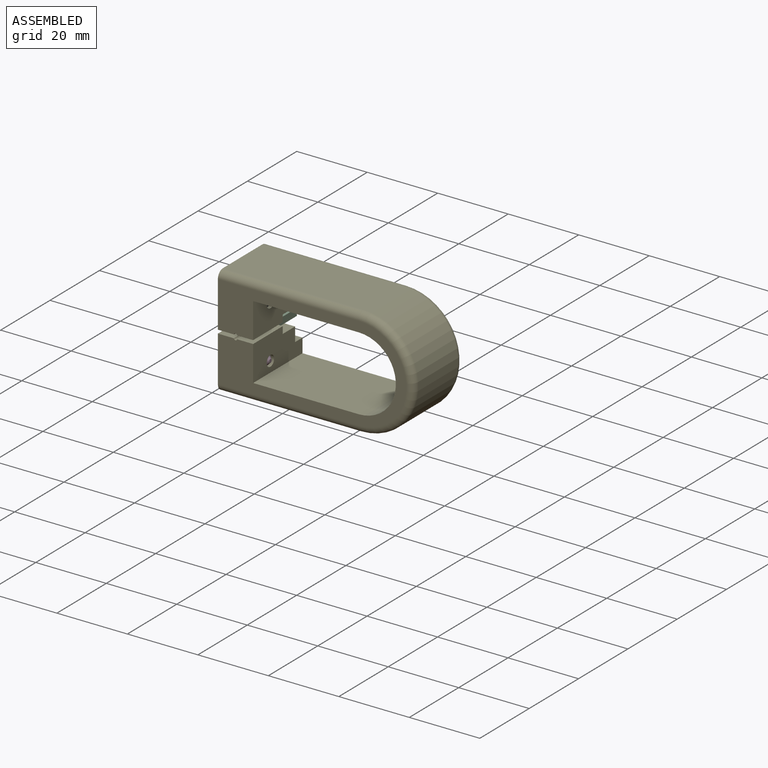
[diagram: assembled view]
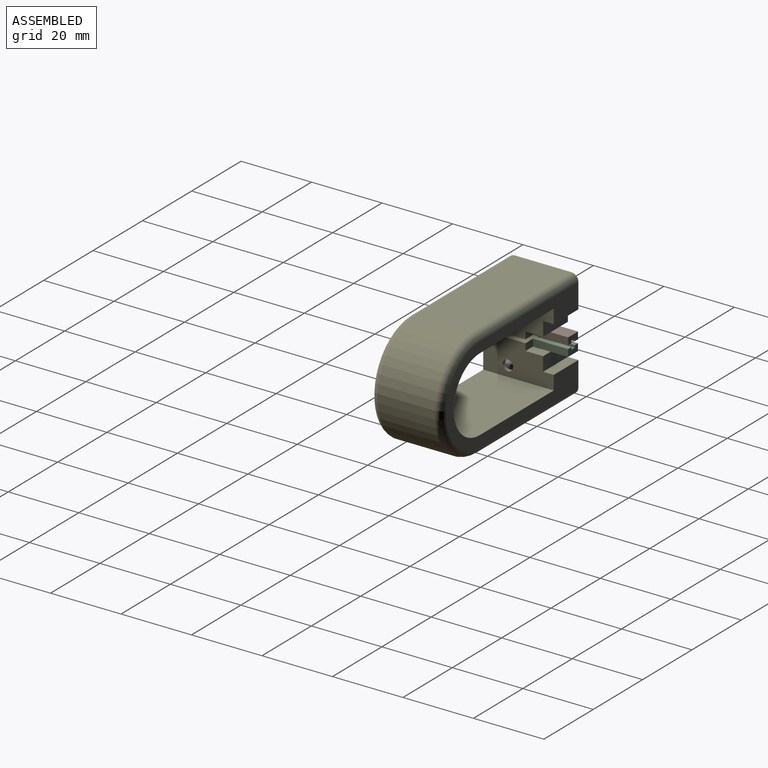
[diagram: assembled view, second angle]
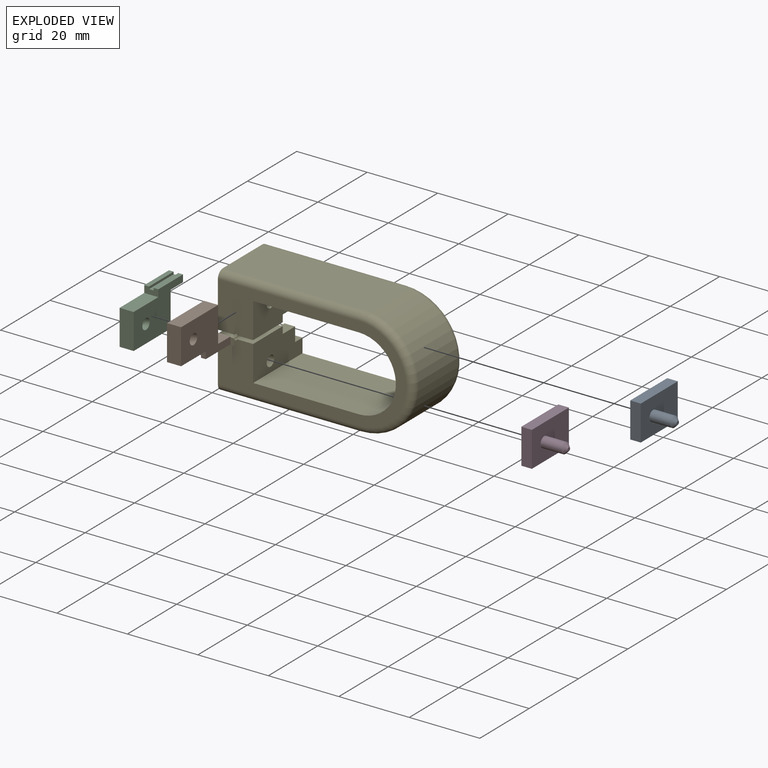
[diagram: exploded view]
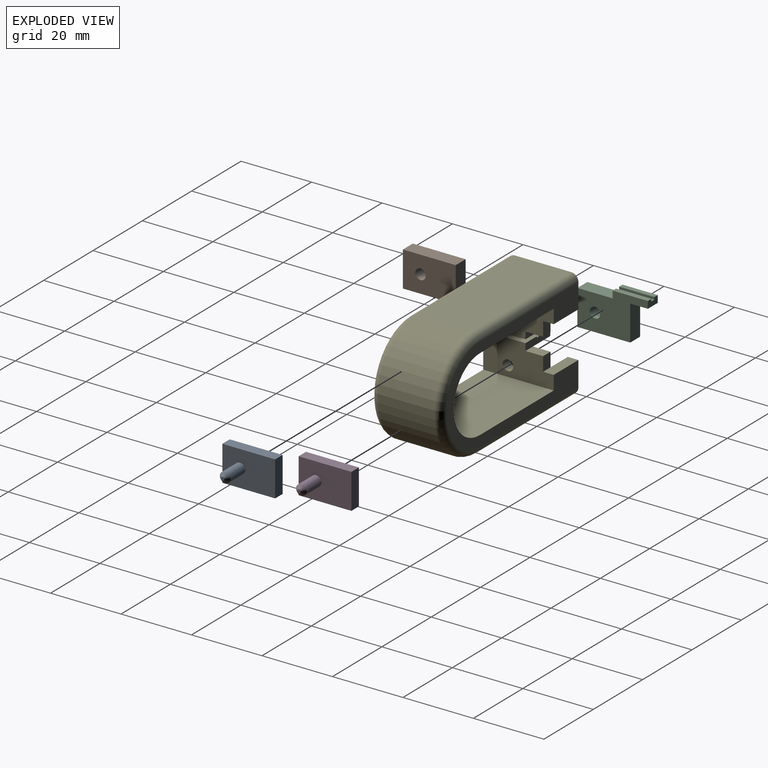
[diagram: exploded view, second angle]
ASSEMBLY  parts=5 mates=4
PART A: 9 faces, bbox 15x10x10 mm
  f0: plane 10x3mm, normal (-1,0,0), area 30mm2, adj f1,f3,f4,f5
  f1: plane 15x3mm, normal (0,0,-1), area 45mm2, adj f0,f2,f4,f5
  f2: plane 10x3mm, normal (1,0,0), area 30mm2, adj f1,f3,f4,f5
  f3: plane 15x3mm, normal (0,0,1), area 45mm2, adj f0,f2,f4,f5
  f4: plane 15x10mm, normal (0,-1,0), area 142.9mm2, adj f0,f1,f2,f3,f6
  f5: plane 15x10mm, normal (0,1,0), area 150mm2, adj f0,f1,f2,f3
  f6: cylinder r=1.5mm len=6mm, axis (0,1,0), area 56.5mm2, adj f4,f8
  f7: plane 1x1mm, normal (0,-1,0), area 0.8mm2, adj f8
  f8: cone r=0.5mm half-angle=45deg, axis (0,1,0), area 8.9mm2, adj f6,f7
PART B: 15 faces, bbox 12x4x20 mm
  f0: plane 4x2mm, normal (0,0,1), area 7.2mm2, adj f6,f8,f9,f10,f11,f12,f13,f14
  f1: plane 4x2mm, normal (0,0,-1), area 7.2mm2, adj f2,f8,f9,f10,f11,f12,f13,f14
  f2: plane 10x4mm, normal (-1,0,0), area 40mm2, adj f1,f3,f8,f9
  f3: plane 10x4mm, normal (0,0,-1), area 40mm2, adj f2,f4,f8,f9
  f4: plane 15x4mm, normal (1,0,0), area 60mm2, adj f3,f5,f8,f9
  f5: plane 10x4mm, normal (0,0,1), area 40mm2, adj f4,f6,f8,f9
  f6: plane 5x4mm, normal (1,0,0), area 20mm2, adj f0,f5,f8,f9
  f7: cylinder r=1.5mm len=4mm, axis (0,1,0), area 37.7mm2, adj f8,f9
  f8: plane 20x12mm, normal (0,-1,0), area 162.9mm2, adj f0,f1,f2,f3,f4,f5,f6,f7
  f9: plane 20x12mm, normal (0,1,0), area 162.9mm2, adj f0,f1,f2,f3,f4,f5,f6,f7
  f10: plane 10x1.35mm, normal (-1,0,0), area 13.5mm2, adj f0,f1,f8,f11
  f11: plane 10x0.65mm, normal (0,1,0), area 6.5mm2, adj f0,f1,f10,f12
  f12: plane 10x1.3mm, normal (-1,0,0), area 13mm2, adj f0,f1,f11,f13
  f13: plane 10x0.65mm, normal (0,-1,0), area 6.5mm2, adj f0,f1,f12,f14
  f14: plane 10x1.35mm, normal (-1,0,0), area 13.5mm2, adj f0,f1,f9,f13
PART C: same geometry as B
PART D: same geometry as A
PART E: 44 faces, bbox 56.8x20x33.6 mm
  f0: plane 7x6mm, normal (0,-1,0), area 42mm2, adj f16,f22,f24,f41
  f1: plane 7x6mm, normal (0,-1,0), area 42mm2, adj f2,f4,f27,f40
  f2: plane 20x15mm, normal (-1,0,0), area 120.3mm2, adj f1,f3,f7,f8,f19,f20,f25,f26
  f3: plane 53.5x27mm, normal (0,1,0), area 433.1mm2, adj f2,f10,f11,f12,f13,f14,f16,f32
  f4: plane 15x10mm, normal (-1,0,0), area 142.9mm2, adj f1,f25,f26,f27,f29,f38,f39
  f5: plane 12x4.55mm, normal (0,0,1), area 54.6mm2, adj f6,f16,f20,f31
  f6: plane 10x2mm, normal (0,1,0), area 19.7mm2, adj f5,f14,f15,f16,f21,f31,f43
  f7: plane 12x4.55mm, normal (0,0,-1), area 54.6mm2, adj f2,f8,f20,f30
  f8: plane 10x2mm, normal (0,1,0), area 19.7mm2, adj f2,f7,f9,f10,f25,f30,f39
  f9: plane 12x4.55mm, normal (0,0,-1), area 54.6mm2, adj f8,f10,f20,f30
  f10: plane 20x10mm, normal (1,0,0), area 164.9mm2, adj f3,f8,f9,f11,f20,f29,f38,f39
  f11: plane 30x20mm, normal (0,0,-1), area 600mm2, adj f3,f10,f12,f20
  f12: cylinder r=10.5mm len=21mm, axis (0,1,0), area 659.7mm2, adj f3,f11,f13,f20
  f13: plane 30x20mm, normal (0,0,1), area 600mm2, adj f3,f12,f14,f20
  f14: plane 20x10mm, normal (1,0,0), area 164.9mm2, adj f3,f6,f13,f15,f20,f28,f41,f42
  f15: plane 12x4.55mm, normal (0,0,1), area 54.6mm2, adj f6,f14,f20,f31
  f16: plane 20x15mm, normal (-1,0,0), area 120.3mm2, adj f0,f3,f5,f6,f17,f20,f21,f22
  f17: plane 40x16mm, normal (0,0,-1), area 640mm2, adj f16,f18,f34,f37
  f18: cylinder r=15.5mm len=31mm, axis (0,1,0), area 779.1mm2, adj f17,f19,f33,f36
  f19: plane 40x16mm, normal (0,0,1), area 640mm2, adj f2,f18,f32,f35
  f20: plane 53.5x27mm, normal (0,-1,0), area 552.6mm2, adj f2,f5,f7,f9,f10,f11,f12,f13
  f21: plane 10x7mm, normal (0,0,-1), area 70mm2, adj f6,f16,f23,f24
  f22: plane 15x7mm, normal (0,0,1), area 105mm2, adj f0,f16,f23,f24
  f23: plane 10x7mm, normal (0,1,0), area 70mm2, adj f16,f21,f22,f24
  f24: plane 15x10mm, normal (-1,0,0), area 142.9mm2, adj f0,f21,f22,f23,f28,f42,f43
  f25: plane 10x7mm, normal (0,0,1), area 70mm2, adj f2,f4,f8,f26
  f26: plane 10x7mm, normal (0,1,0), area 70mm2, adj f2,f4,f25,f27
  f27: plane 15x7mm, normal (0,0,-1), area 105mm2, adj f1,f2,f4,f26
  f28: cylinder r=1.5mm len=3mm, axis (-1,0,0), area 28.3mm2, adj f14,f24
  f29: cylinder r=1.5mm len=3mm, axis (-1,0,0), area 28.3mm2, adj f4,f10
  f30: cylinder r=0.45mm len=12mm, axis (0,1,0), area 15.8mm2, adj f7,f8,f9,f20
  f31: cylinder r=0.45mm len=12mm, axis (0,1,0), area 15.8mm2, adj f5,f6,f15,f20
  f32: cylinder r=2mm len=40mm, axis (-1,0,0), area 125.7mm2, adj f2,f3,f19,f33
  f33: torus R=13.5mm, axis (0,-1,0), area 145.8mm2, adj f3,f18,f32,f34
  f34: cylinder r=2mm len=40mm, axis (1,0,0), area 125.7mm2, adj f3,f16,f17,f33
  f35: cylinder r=2mm len=40mm, axis (1,0,0), area 125.7mm2, adj f2,f19,f20,f36
  f36: torus R=13.5mm, axis (0,-1,0), area 145.8mm2, adj f18,f20,f35,f37
  f37: cylinder r=2mm len=40mm, axis (-1,0,0), area 125.7mm2, adj f16,f17,f20,f36
  f38: plane 4x3mm, normal (0,1,0), area 12mm2, adj f4,f10,f39,f40
  f39: plane 5x3mm, normal (0,0,-1), area 15mm2, adj f4,f8,f10,f38
  f40: plane 10x3mm, normal (0,0,-1), area 30mm2, adj f1,f2,f3,f10,f38
  f41: plane 10x3mm, normal (0,0,1), area 30mm2, adj f0,f3,f14,f16,f42
  f42: plane 4x3mm, normal (0,1,0), area 12mm2, adj f14,f24,f41,f43
  f43: plane 5x3mm, normal (0,0,1), area 15mm2, adj f6,f14,f24,f42
PLACE A rot(axis=(-0.71,0.71,0),180deg) t=(-17.84,16.28,25.36)mm
PLACE B rot(axis=(-0.58,-0.58,-0.58),120deg) t=(-10.84,11.28,13.36)mm
PLACE C rot(axis=(-0.58,0.58,0.58),120deg) t=(-14.84,11.28,12.36)mm
PLACE D rot(axis=(0.71,-0.71,0),180deg) t=(-17.84,16.28,10.36)mm
PLACE E t=(-19.85,19.28,-10.9)mm
MATE fastened C.f7 <-> E.f28  axis (1,0,0) through (-10.84,6.28,5.36)mm
MATE fastened B.f7 <-> E.f29  axis (1,0,0) through (-10.84,6.28,20.36)mm
MATE fastened A.f6 <-> B.f7  axis (-1,0,0) through (-14.84,6.28,20.36)mm
MATE fastened D.f6 <-> C.f7  axis (1,0,0) through (-14.84,6.28,5.36)mm
